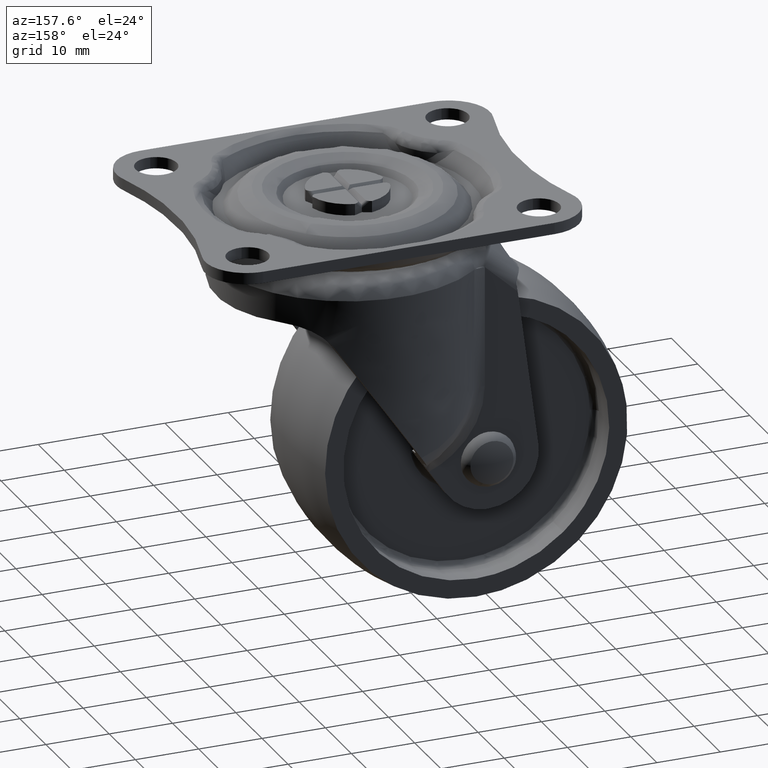
[diagram: clean part render]
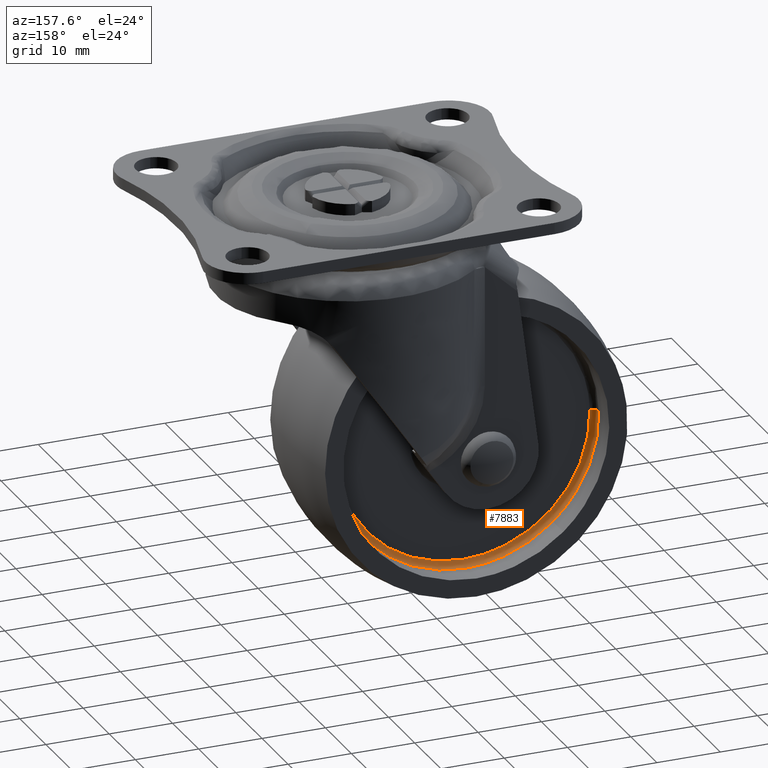
[diagram: same view with one face highlighted and labeled with its STEP entity id]
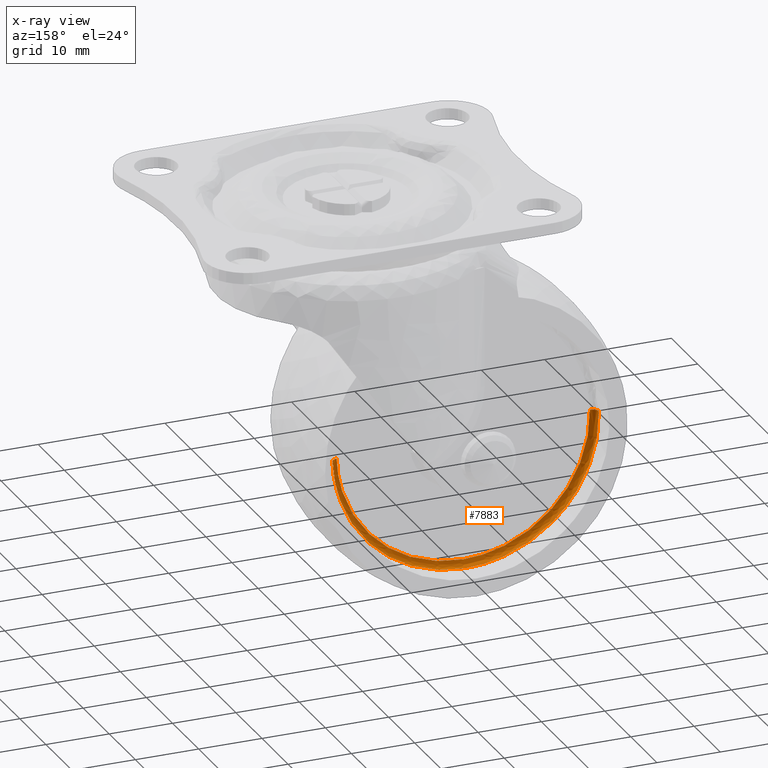
[diagram: x-ray of the same camera — body ghosted, the highlighted face saturated]
A machine part, auxiliary view. The second image highlights one B-rep face of the part: STEP entity #7883.
The next image is the same camera in x-ray: the body ghosted, the highlighted face saturated — about 0% of this face is hidden behind the body in this view.
In plain terms, the highlighted face is a freeform B-spline surface patch.
Its self-contained STEP definition (entity closure, byte-faithful):
#6730=CARTESIAN_POINT('',(-13.741130464827540,6.499999999999999,-15.880218309222920));
#6731=VERTEX_POINT('',#6730);
#6737=CARTESIAN_POINT('',(0.0,6.500000000000000,-21.0));
#6738=VERTEX_POINT('',#6737);
#6739=CARTESIAN_POINT('',(-13.741130464827538,6.499999999999999,-15.880218309222919));
#6740=CARTESIAN_POINT('',(-7.824350098524683,6.500000000000001,-21.000000000000007));
#6741=CARTESIAN_POINT('',(0.0,6.500000000000000,-21.0));
#6749=(BOUNDED_CURVE()B_SPLINE_CURVE(2,(#6739,#6740,#6741),.UNSPECIFIED.,.F.,.U.)B_SPLINE_CURVE_WITH_KNOTS((3,3),(0.885882142137469,1.0),.UNSPECIFIED.)CURVE()GEOMETRIC_REPRESENTATION_ITEM()RATIONAL_B_SPLINE_CURVE((0.854663301408978,0.866302613146189,1.0))REPRESENTATION_ITEM(''));
#6750=EDGE_CURVE('',#6731,#6738,#6749,.T.);
#6752=CARTESIAN_POINT('',(20.993367974946398,6.499999996995585,-0.527732004425161));
#6753=VERTEX_POINT('',#6752);
#6754=CARTESIAN_POINT('',(0.0,6.500000000000000,-21.0));
#6755=CARTESIAN_POINT('',(20.478735399569047,6.500000000000001,-21.000000000000007));
#6756=CARTESIAN_POINT('',(20.993367974946402,6.499999996995585,-0.527732004425161));
#6764=(BOUNDED_CURVE()B_SPLINE_CURVE(2,(#6754,#6755,#6756),.UNSPECIFIED.,.F.,.U.)B_SPLINE_CURVE_WITH_KNOTS((3,3),(0.0,0.245579891767889),.UNSPECIFIED.)CURVE()GEOMETRIC_REPRESENTATION_ITEM()RATIONAL_B_SPLINE_CURVE((1.0,0.712285260096975,0.989826157677240))REPRESENTATION_ITEM(''));
#6765=EDGE_CURVE('',#6738,#6753,#6764,.T.);
#6873=CARTESIAN_POINT('',(-20.993367974946398,6.499999996995583,0.527732004425161));
#6874=VERTEX_POINT('',#6873);
#6888=CARTESIAN_POINT('',(-20.993367974946398,6.499999996995583,0.527732004425161));
#6889=CARTESIAN_POINT('',(-20.999999999999996,6.500000000000000,0.263907674706099));
#6890=CARTESIAN_POINT('',(-21.0,6.500000000000000,1.224606E-015));
#6891=CARTESIAN_POINT('',(-21.0,6.500000000000000,-9.599128756944406));
#6892=CARTESIAN_POINT('',(-13.741130464827538,6.499999999999999,-15.880218309222919));
#6900=(BOUNDED_CURVE()B_SPLINE_CURVE(2,(#6888,#6889,#6890,#6891,#6892),.UNSPECIFIED.,.F.,.U.)B_SPLINE_CURVE_WITH_KNOTS((3,2,3),(0.745579891767889,0.750000000000000,0.885882142137469),.UNSPECIFIED.)CURVE()GEOMETRIC_REPRESENTATION_ITEM()RATIONAL_B_SPLINE_CURVE((0.989826157677240,0.994821521089573,1.0,0.840804168040359,0.854663301408978))REPRESENTATION_ITEM(''));
#6901=EDGE_CURVE('',#6874,#6731,#6900,.T.);
#7795=CARTESIAN_POINT('',(-20.990935048021591,6.569724229331020,0.527670845309520));
#7796=CARTESIAN_POINT('',(-21.518605893331117,6.569724229331021,-20.463264202712057));
#7797=CARTESIAN_POINT('',(-0.527670845309526,6.569724229331020,-20.990935048021591));
#7798=CARTESIAN_POINT('',(20.463264202712057,6.569724229331021,-21.518605893331117));
#7799=CARTESIAN_POINT('',(20.990935048021591,6.569724229331020,-0.527670845309528));
#7800=CARTESIAN_POINT('',(-21.071082789650667,5.422663227882418,0.529685601987978));
#7801=CARTESIAN_POINT('',(-21.600768391638649,5.422663227882419,-20.541397187662685));
#7802=CARTESIAN_POINT('',(-0.529685601987984,5.422663227882418,-21.071082789650667));
#7803=CARTESIAN_POINT('',(20.541397187662682,5.422663227882419,-21.600768391638649));
#7804=CARTESIAN_POINT('',(21.071082789650667,5.422663227882418,-0.529685601987985));
#7805=CARTESIAN_POINT('',(-19.924354177319426,5.502407714534861,0.500859098793854));
#7806=CARTESIAN_POINT('',(-20.425213276113286,5.502407714534861,-19.423495078525569));
#7807=CARTESIAN_POINT('',(-0.500859098793859,5.502407714534861,-19.924354177319426));
#7808=CARTESIAN_POINT('',(19.423495078525569,5.502407714534861,-20.425213276113301));
#7809=CARTESIAN_POINT('',(19.924354177319426,5.502407714534861,-0.500859098793861));
#7817=(BOUNDED_SURFACE()B_SPLINE_SURFACE(2,2,((#7795,#7800,#7805),(#7796,#7801,#7806),(#7797,#7802,#7807),(#7798,#7803,#7808),(#7799,#7804,#7809)),.UNSPECIFIED.,.F.,.F.,.U.)B_SPLINE_SURFACE_WITH_KNOTS((3,2,3),(3,3),(0.0,34.789906960584247,69.579813921168494),(0.0,1.822371512056702),.UNSPECIFIED.)GEOMETRIC_REPRESENTATION_ITEM()RATIONAL_B_SPLINE_SURFACE(((0.910892959868127,0.599412730475492,0.915967016130494),(0.644098588857838,0.423848806448765,0.647686488449080),(0.910892959868127,0.599412730475492,0.915967016130494),(0.644098588857838,0.423848806448765,0.647686488449080),(0.910892959868127,0.599412730475492,0.915967016130494)))REPRESENTATION_ITEM('')SURFACE());
#7818=ORIENTED_EDGE('',*,*,#6901,.F.);
#7819=CARTESIAN_POINT('',(-19.993683813354281,5.500000000000001,0.502601910417704));
#7820=VERTEX_POINT('',#7819);
#7821=CARTESIAN_POINT('',(-20.993367974946402,6.499999996995583,0.527732004425161));
#7822=CARTESIAN_POINT('',(-20.993367968942366,5.500000055437022,0.527732004159086));
#7823=CARTESIAN_POINT('',(-19.993683813354270,5.500000000000001,0.502601910417705));
#7831=(BOUNDED_CURVE()B_SPLINE_CURVE(2,(#7821,#7822,#7823),.UNSPECIFIED.,.F.,.U.)B_SPLINE_CURVE_WITH_KNOTS((3,3),(-1.723441275798136,-0.263586936303100),.UNSPECIFIED.)CURVE()GEOMETRIC_REPRESENTATION_ITEM()RATIONAL_B_SPLINE_CURVE((0.883897564958219,0.626638738458110,0.888510388478363))REPRESENTATION_ITEM(''));
#7832=EDGE_CURVE('',#6874,#7820,#7831,.T.);
#7833=ORIENTED_EDGE('',*,*,#7832,.T.);
#7834=CARTESIAN_POINT('',(0.0,5.500000000000000,-20.0));
#7835=VERTEX_POINT('',#7834);
#7836=CARTESIAN_POINT('',(-19.993683813354281,5.500000000000001,0.502601910417704));
#7837=CARTESIAN_POINT('',(-20.0,5.500000000000001,0.251340643322382));
#7838=CARTESIAN_POINT('',(-20.0,5.500000000000000,1.224606E-015));
#7839=CARTESIAN_POINT('',(-19.999999999999996,5.500000000000001,-19.999999999999996));
#7840=CARTESIAN_POINT('',(0.0,5.500000000000000,-20.0));
#7848=(BOUNDED_CURVE()B_SPLINE_CURVE(2,(#7836,#7837,#7838,#7839,#7840),.UNSPECIFIED.,.F.,.U.)B_SPLINE_CURVE_WITH_KNOTS((3,2,3),(0.745579891754853,0.750000000000000,1.0),.UNSPECIFIED.)CURVE()GEOMETRIC_REPRESENTATION_ITEM()RATIONAL_B_SPLINE_CURVE((0.989826157647774,0.994821521074300,1.0,0.707106781186548,1.0))REPRESENTATION_ITEM(''));
#7849=EDGE_CURVE('',#7820,#7835,#7848,.T.);
#7850=ORIENTED_EDGE('',*,*,#7849,.T.);
#7851=CARTESIAN_POINT('',(19.993683813354270,5.500000000000001,-0.502601910417705));
#7852=VERTEX_POINT('',#7851);
#7853=CARTESIAN_POINT('',(0.0,5.500000000000000,-20.0));
#7854=CARTESIAN_POINT('',(19.503557521945581,5.500000000000001,-20.0));
#7855=CARTESIAN_POINT('',(19.993683813354270,5.500000000000001,-0.502601910417705));
#7863=(BOUNDED_CURVE()B_SPLINE_CURVE(2,(#7853,#7854,#7855),.UNSPECIFIED.,.F.,.U.)B_SPLINE_CURVE_WITH_KNOTS((3,3),(0.0,0.245579891754853),.UNSPECIFIED.)CURVE()GEOMETRIC_REPRESENTATION_ITEM()RATIONAL_B_SPLINE_CURVE((1.0,0.712285260112248,0.989826157647774))REPRESENTATION_ITEM(''));
#7864=EDGE_CURVE('',#7835,#7852,#7863,.T.);
#7865=ORIENTED_EDGE('',*,*,#7864,.T.);
#7866=CARTESIAN_POINT('',(20.993367974946402,6.499999996995585,-0.527732004425161));
#7867=CARTESIAN_POINT('',(20.993367968942355,5.500000055437017,-0.527732004159083));
#7868=CARTESIAN_POINT('',(19.993683813354270,5.500000000000001,-0.502601910417705));
#7876=(BOUNDED_CURVE()B_SPLINE_CURVE(2,(#7866,#7867,#7868),.UNSPECIFIED.,.F.,.U.)B_SPLINE_CURVE_WITH_KNOTS((3,3),(-1.723441275798137,-0.263586936303094),.UNSPECIFIED.)CURVE()GEOMETRIC_REPRESENTATION_ITEM()RATIONAL_B_SPLINE_CURVE((0.883897564958220,0.626638738458109,0.888510388478365))REPRESENTATION_ITEM(''));
#7877=EDGE_CURVE('',#6753,#7852,#7876,.T.);
#7878=ORIENTED_EDGE('',*,*,#7877,.F.);
#7879=ORIENTED_EDGE('',*,*,#6765,.F.);
#7880=ORIENTED_EDGE('',*,*,#6750,.F.);
#7881=EDGE_LOOP('',(#7818,#7833,#7850,#7865,#7878,#7879,#7880));
#7882=FACE_OUTER_BOUND('',#7881,.T.);
#7883=ADVANCED_FACE('',(#7882),#7817,.F.);